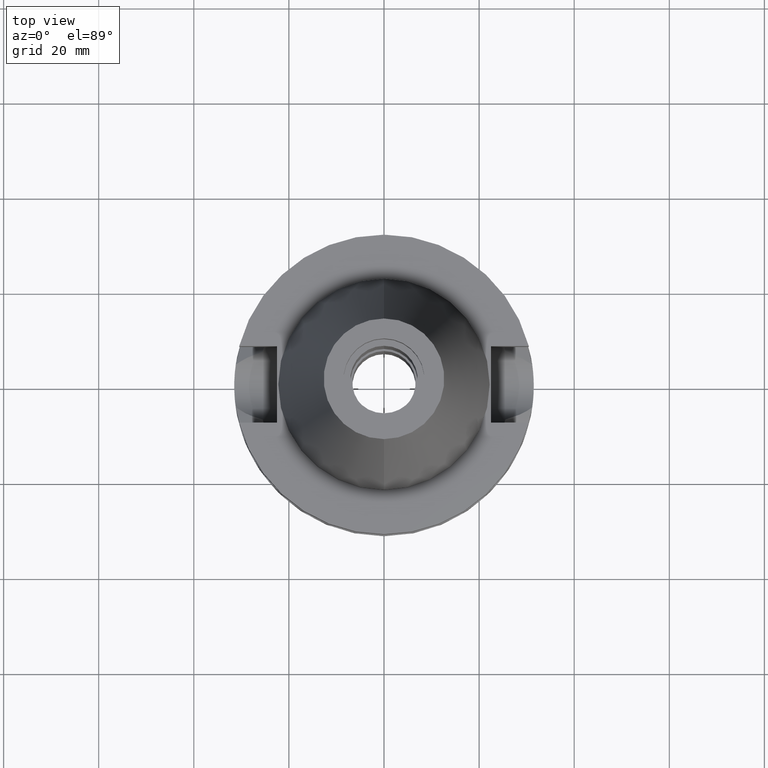
[diagram: clean part render]
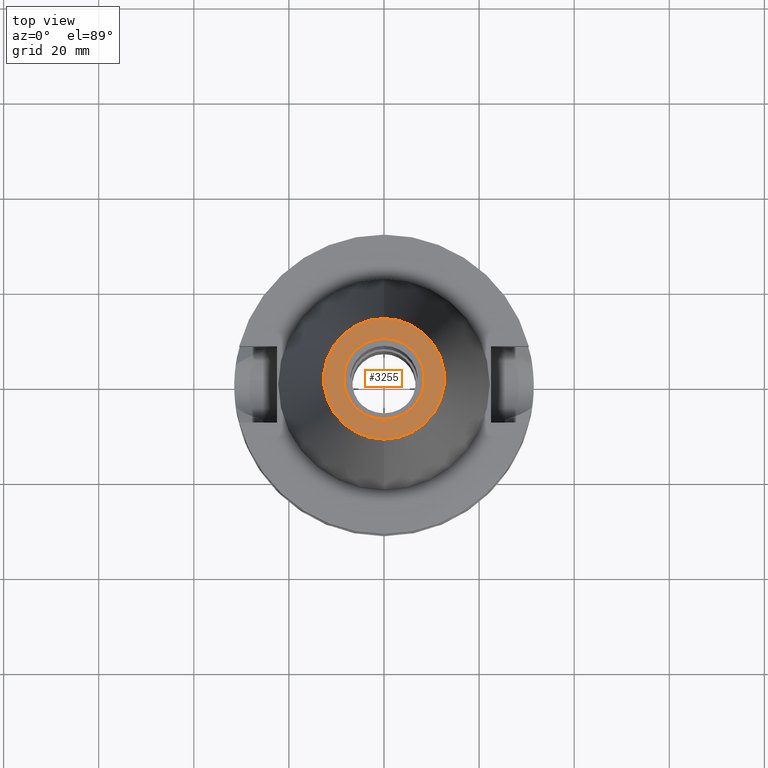
[diagram: same view with one face highlighted and labeled with its STEP entity id]
A machine part, top view. The second image highlights one B-rep face of the part: STEP entity #3255.
In plain terms, the highlighted planar face has unit normal (0, 0, -1).
Its self-contained STEP definition (entity closure, byte-faithful):
#218 = AXIS2_PLACEMENT_3D ( 'NONE', #631, #2770, #1990 ) ;
#492 = DIRECTION ( 'NONE',  ( 0.0000000000000000000, -1.000000000000000000, 0.0000000000000000000 ) ) ;
#494 = AXIS2_PLACEMENT_3D ( 'NONE', #2944, #2595, #492 ) ;
#588 = DIRECTION ( 'NONE',  ( 0.0000000000000000000, 0.0000000000000000000, 1.000000000000000000 ) ) ;
#631 = CARTESIAN_POINT ( 'NONE',  ( 0.0000000000000000000, 2.097452572899999775E-14, 65.40000000000000568 ) ) ;
#680 = VERTEX_POINT ( 'NONE', #1455 ) ;
#683 = CARTESIAN_POINT ( 'NONE',  ( 0.0000000000000000000, 12.68766899429999917, 65.40000000000000568 ) ) ;
#792 = EDGE_LOOP ( 'NONE', ( #2774, #2483 ) ) ;
#830 = VERTEX_POINT ( 'NONE', #683 ) ;
#840 = CARTESIAN_POINT ( 'NONE',  ( 0.0000000000000000000, 8.500000000000000000, 65.40000000000000568 ) ) ;
#859 = EDGE_CURVE ( 'NONE', #2225, #2975, #3160, .T. ) ;
#991 = CIRCLE ( 'NONE', #2405, 12.68766899429999917 ) ;
#1190 = DIRECTION ( 'NONE',  ( 0.0000000000000000000, -1.000000000000000000, 0.0000000000000000000 ) ) ;
#1455 = CARTESIAN_POINT ( 'NONE',  ( 0.0000000000000000000, -12.68766899429999917, 65.40000000000000568 ) ) ;
#1507 = DIRECTION ( 'NONE',  ( 0.0000000000000000000, 1.000000000000000000, 0.0000000000000000000 ) ) ;
#1569 = FACE_BOUND ( 'NONE', #2449, .T. ) ;
#1724 = AXIS2_PLACEMENT_3D ( 'NONE', #1752, #3065, #1190 ) ;
#1752 = CARTESIAN_POINT ( 'NONE',  ( 0.0000000000000000000, 1.625106302469000024E-14, 65.40000000000000568 ) ) ;
#1799 = CARTESIAN_POINT ( 'NONE',  ( 0.0000000000000000000, 1.625106302469000024E-14, 65.40000000000000568 ) ) ;
#1973 = ORIENTED_EDGE ( 'NONE', *, *, #859, .F. ) ;
#1990 = DIRECTION ( 'NONE',  ( 0.0000000000000000000, 1.000000000000000000, 0.0000000000000000000 ) ) ;
#1995 = EDGE_CURVE ( 'NONE', #2975, #2225, #2398, .T. ) ;
#2052 = EDGE_CURVE ( 'NONE', #680, #830, #3556, .T. ) ;
#2090 = PLANE ( 'NONE',  #494 ) ;
#2127 = CARTESIAN_POINT ( 'NONE',  ( 0.0000000000000000000, -8.500000000000000000, 65.40000000000000568 ) ) ;
#2168 = AXIS2_PLACEMENT_3D ( 'NONE', #2779, #588, #3249 ) ;
#2225 = VERTEX_POINT ( 'NONE', #2127 ) ;
#2398 = CIRCLE ( 'NONE', #218, 8.500000000000000000 ) ;
#2405 = AXIS2_PLACEMENT_3D ( 'NONE', #1799, #3449, #1507 ) ;
#2449 = EDGE_LOOP ( 'NONE', ( #2932, #1973 ) ) ;
#2483 = ORIENTED_EDGE ( 'NONE', *, *, #2052, .F. ) ;
#2595 = DIRECTION ( 'NONE',  ( 0.0000000000000000000, 0.0000000000000000000, -1.000000000000000000 ) ) ;
#2704 = EDGE_CURVE ( 'NONE', #830, #680, #991, .T. ) ;
#2770 = DIRECTION ( 'NONE',  ( 0.0000000000000000000, 0.0000000000000000000, 1.000000000000000000 ) ) ;
#2774 = ORIENTED_EDGE ( 'NONE', *, *, #2704, .F. ) ;
#2779 = CARTESIAN_POINT ( 'NONE',  ( 0.0000000000000000000, 2.097452572899999775E-14, 65.40000000000000568 ) ) ;
#2932 = ORIENTED_EDGE ( 'NONE', *, *, #1995, .F. ) ;
#2944 = CARTESIAN_POINT ( 'NONE',  ( 0.0000000000000000000, 2.025565805790000122E-14, 65.40000000000000568 ) ) ;
#2975 = VERTEX_POINT ( 'NONE', #840 ) ;
#3065 = DIRECTION ( 'NONE',  ( 0.0000000000000000000, 0.0000000000000000000, -1.000000000000000000 ) ) ;
#3160 = CIRCLE ( 'NONE', #2168, 8.500000000000000000 ) ;
#3162 = FACE_OUTER_BOUND ( 'NONE', #792, .T. ) ;
#3249 = DIRECTION ( 'NONE',  ( 0.0000000000000000000, -1.000000000000000000, 0.0000000000000000000 ) ) ;
#3255 = ADVANCED_FACE ( 'NONE', ( #3162, #1569 ), #2090, .F. ) ;
#3449 = DIRECTION ( 'NONE',  ( 0.0000000000000000000, 0.0000000000000000000, -1.000000000000000000 ) ) ;
#3556 = CIRCLE ( 'NONE', #1724, 12.68766899429999917 ) ;